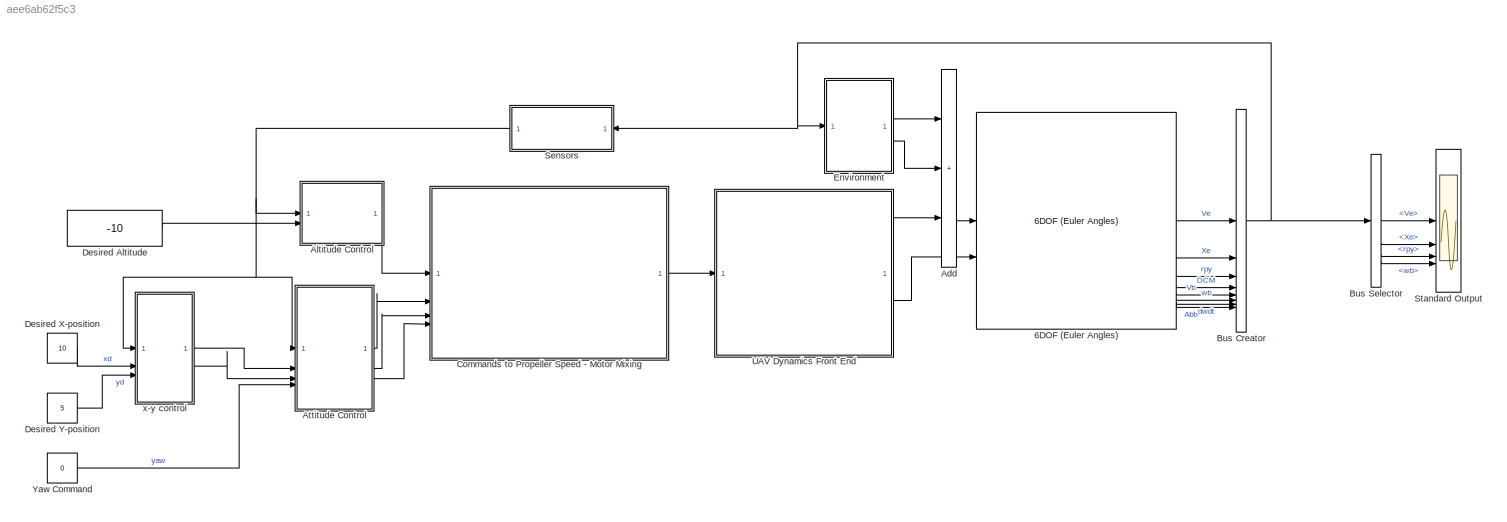
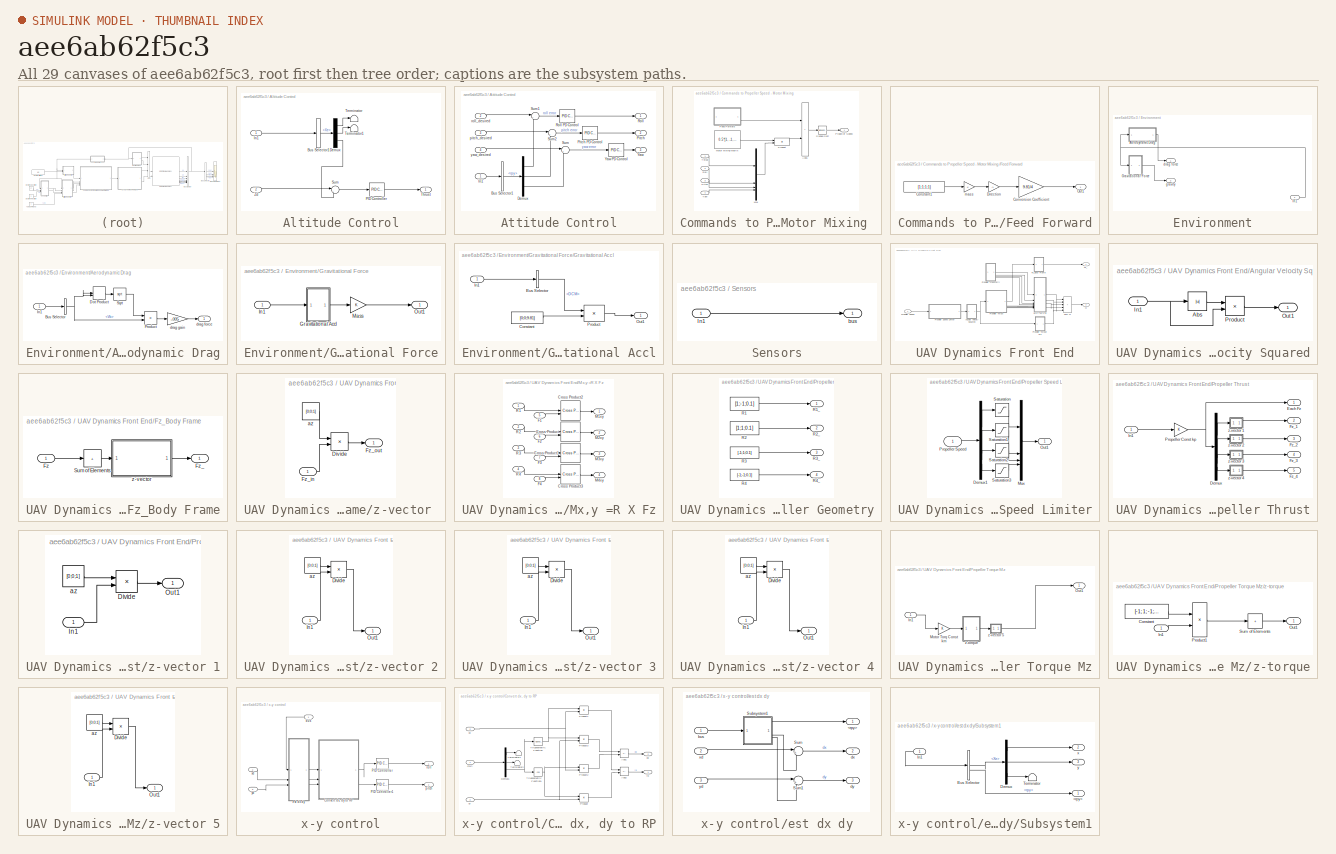
[diagram: thumbnail index - all 29 canvases of the model, root first then tree order]
MODEL slx_aee6ab62f5c3
KIND model
CONFIG AbsTol = auto
CONFIG EnableMultiTasking = off
CONFIG FixedStep = auto
CONFIG MaxStep = auto
CONFIG MinStep = auto
CONFIG RelTol = 1e-3
CONFIG SampleTimeConstraint = Unconstrained
CONFIG SolverName = VariableStepAuto
CONFIG StartTime = 0.0
CONFIG StopTime = 20
BLOCK [Reference] 6DOF (Euler Angles)  REF=aerolib6dof2/6DOF (Euler Angles)
  SourceBlock = aerolib6dof2/6DOF (Euler Angles)
  SourceType = 6DOF EoM (Body Axis)
BLOCK [Sum] Add
  IconShape = rectangular
  Inputs = +++
BLOCK [SubSystem] Altitude Control
BLOCK [BusSelector] Altitude Control/Bus Selector1
  OutputSignals = Xe
BLOCK [Demux] Altitude Control/Demux
  Outputs = 3
BLOCK [Inport] Altitude Control/In1
BLOCK [Reference] Altitude Control/PID Controller  REF=slpidlib/PID Controller
  SourceBlock = slpidlib/PID Controller
  SourceType = PID 1dof
BLOCK [Sum] Altitude Control/Sum
  Inputs = |+-
BLOCK [Terminator] Altitude Control/Terminator
BLOCK [Terminator] Altitude Control/Terminator1
BLOCK [Outport] Altitude Control/Thrust
BLOCK [Inport] Altitude Control/Zd
  Port = 2
BLOCK [SubSystem] Attitude Control
BLOCK [BusSelector] Attitude Control/Bus Selector1
  OutputSignals = rpy
BLOCK [Demux] Attitude Control/Demux
  Outputs = 3
BLOCK [Inport] Attitude Control/In1
BLOCK [Outport] Attitude Control/Pitch
  Port = 2
BLOCK [Reference] Attitude Control/Pitch PD Control  REF=slpidlib/PID Controller
  SourceBlock = slpidlib/PID Controller
  SourceType = PID 1dof
BLOCK [Outport] Attitude Control/Roll
BLOCK [Reference] Attitude Control/Roll PD Control  REF=slpidlib/PID Controller
  SourceBlock = slpidlib/PID Controller
  SourceType = PID 1dof
BLOCK [Sum] Attitude Control/Sum
  Inputs = |+-
BLOCK [Sum] Attitude Control/Sum1
  Inputs = |+-
BLOCK [Sum] Attitude Control/Sum2
  Inputs = |+-
BLOCK [Outport] Attitude Control/Yaw
  Port = 3
BLOCK [Reference] Attitude Control/Yaw PD Control  REF=slpidlib/PID Controller
  SourceBlock = slpidlib/PID Controller
  SourceType = PID 1dof
BLOCK [Inport] Attitude Control/pitch_desired
  Port = 3
BLOCK [Inport] Attitude Control/roll_desired
  Port = 2
BLOCK [Inport] Attitude Control/yaw_desired
  Port = 4
BLOCK [BusCreator] Bus Creator
  DisplayOption = bar
  InheritFromInputs = on
  Inputs = 8
BLOCK [BusSelector] Bus Selector
  OutputSignals = Ve,Xe,rpy,wb
BLOCK [SubSystem] Commands to Propeller Speed - Motor Mixing 
BLOCK [Sum] Commands to Propeller Speed - Motor Mixing /Add1
  IconShape = rectangular
BLOCK [SubSystem] Commands to Propeller Speed - Motor Mixing /Feed Forward
BLOCK [Constant] Commands to Propeller Speed - Motor Mixing /Feed Forward/Constant1
  Value = [1;1;1;1]
BLOCK [Gain] Commands to Propeller Speed - Motor Mixing /Feed Forward/Conversion Coefficient
  Gain = 9.81/4
BLOCK [Gain] Commands to Propeller Speed - Motor Mixing /Feed Forward/Direction
  Gain = -1
BLOCK [Outport] Commands to Propeller Speed - Motor Mixing /Feed Forward/Out1
BLOCK [Gain] Commands to Propeller Speed - Motor Mixing /Feed Forward/mass
BLOCK [Constant] Commands to Propeller Speed - Motor Mixing /Motor Mixing Matrix
  Value = 0.5*[1, -1, -1, -1 ; 1, 1, -1, 1 ;   1, 1, 1, -1;  1, -1, 1, 1]
  VectorParams1D = off
BLOCK [Mux] Commands to Propeller Speed - Motor Mixing /Mux
  DisplayOption = bar
BLOCK [Inport] Commands to Propeller Speed - Motor Mixing /Pitch
  Port = 3
BLOCK [Product] Commands to Propeller Speed - Motor Mixing /Product
  Multiplication = Matrix(*)
BLOCK [Outport] Commands to Propeller Speed - Motor Mixing /Propeller Speed
BLOCK [Inport] Commands to Propeller Speed - Motor Mixing /Roll
  Port = 2
BLOCK [Sqrt] Commands to Propeller Speed - Motor Mixing /Signed Sqrt
  Operator = signedSqrt
BLOCK [Inport] Commands to Propeller Speed - Motor Mixing /Thrust
BLOCK [Inport] Commands to Propeller Speed - Motor Mixing /Yaw
  Port = 4
BLOCK [Constant] Desired Altitude
  Value = -10
BLOCK [Constant] Desired X-position
  Value = 10
BLOCK [Constant] Desired Y-position
  Value = 5
BLOCK [SubSystem] Environment
BLOCK [SubSystem] Environment/Aerodynamic Drag
BLOCK [BusSelector] Environment/Aerodynamic Drag/Bus Selector
  OutputSignals = Vb
BLOCK [DotProduct] Environment/Aerodynamic Drag/Dot Product
  OutDataTypeStr = Inherit: Inherit via internal rule
BLOCK [Inport] Environment/Aerodynamic Drag/In1
BLOCK [Product] Environment/Aerodynamic Drag/Product
BLOCK [Sqrt] Environment/Aerodynamic Drag/Sqrt
BLOCK [Outport] Environment/Aerodynamic Drag/drag force
BLOCK [Gain] Environment/Aerodynamic Drag/drag gain
  Gain = -.005
BLOCK [SubSystem] Environment/Gravitational Force
BLOCK [SubSystem] Environment/Gravitational Force/Gravitational Accl
BLOCK [BusSelector] Environment/Gravitational Force/Gravitational Accl/Bus Selector
  OutputSignals = DCM
BLOCK [Constant] Environment/Gravitational Force/Gravitational Accl/Constant
  Value = [0;0;9.81]
BLOCK [Inport] Environment/Gravitational Force/Gravitational Accl/In1
BLOCK [Outport] Environment/Gravitational Force/Gravitational Accl/Out1
BLOCK [Product] Environment/Gravitational Force/Gravitational Accl/Product
  Multiplication = Matrix(*)
BLOCK [Inport] Environment/Gravitational Force/In1
BLOCK [Gain] Environment/Gravitational Force/Mass
BLOCK [Outport] Environment/Gravitational Force/Out1
BLOCK [Inport] Environment/In1
BLOCK [Outport] Environment/drag force
BLOCK [Outport] Environment/gravity
  Port = 2
BLOCK [SubSystem] Sensors
BLOCK [Inport] Sensors/In1
BLOCK [Outport] Sensors/bus
BLOCK [Scope] Standard Output
  Floating = off
  NumInputPorts = 4
  ScopeSpecificationString = Simulink.scopes.TimeScopeBlockCfg('CurrentConfiguration', extmgr.ConfigurationSet(extmgr.Configuration('Core','General UI',true),extmgr.Configuration('Core','Source UI',true),extmgr.Configuration('Sources','WiredSimulink',true),extmgr.Configuration('Visuals','Time Domain',true,'SerializedDisplays',{struct('MinYLimReal','-41.55665','MaxYLimReal','7.34157','YLabelReal','','MinYLimMag','0.00000','Max...<+3731ch>
BLOCK [SubSystem] UAV Dynamics Front End
BLOCK [SubSystem] UAV Dynamics Front End/Angular Velocity Squared
BLOCK [Abs] UAV Dynamics Front End/Angular Velocity Squared/Abs
  SaturateOnIntegerOverflow = off
BLOCK [Inport] UAV Dynamics Front End/Angular Velocity Squared/In1
BLOCK [Outport] UAV Dynamics Front End/Angular Velocity Squared/Out1
BLOCK [Product] UAV Dynamics Front End/Angular Velocity Squared/Product
BLOCK [Outport] UAV Dynamics Front End/Fz_
BLOCK [SubSystem] UAV Dynamics Front End/Fz_Body Frame
BLOCK [Inport] UAV Dynamics Front End/Fz_Body Frame/Fz
BLOCK [Outport] UAV Dynamics Front End/Fz_Body Frame/Fz_
BLOCK [Sum] UAV Dynamics Front End/Fz_Body Frame/Sum of Elements
  IconShape = rectangular
  Inputs = +
BLOCK [SubSystem] UAV Dynamics Front End/Fz_Body Frame/z-vector 
BLOCK [Product] UAV Dynamics Front End/Fz_Body Frame/z-vector /Divide
  Inputs = **
BLOCK [Inport] UAV Dynamics Front End/Fz_Body Frame/z-vector /Fz_in
BLOCK [Outport] UAV Dynamics Front End/Fz_Body Frame/z-vector /Fz_out
BLOCK [Constant] UAV Dynamics Front End/Fz_Body Frame/z-vector /az
  Value = [0;0;1]
BLOCK [Outport] UAV Dynamics Front End/M
  Port = 2
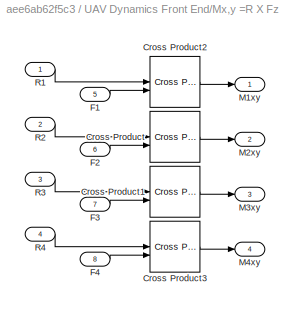
BLOCK [SubSystem] UAV Dynamics Front End/Mx,y =R X Fz
BLOCK [Reference] UAV Dynamics Front End/Mx,y =R X Fz/Cross Product  REF=matrix_library/Cross Product
  SourceBlock = matrix_library/Cross Product
  SourceType = CrossProduct
BLOCK [Reference] UAV Dynamics Front End/Mx,y =R X Fz/Cross Product1  REF=matrix_library/Cross Product
  SourceBlock = matrix_library/Cross Product
  SourceType = CrossProduct
BLOCK [Reference] UAV Dynamics Front End/Mx,y =R X Fz/Cross Product2  REF=matrix_library/Cross Product
  SourceBlock = matrix_library/Cross Product
  SourceType = CrossProduct
BLOCK [Reference] UAV Dynamics Front End/Mx,y =R X Fz/Cross Product3  REF=matrix_library/Cross Product
  SourceBlock = matrix_library/Cross Product
  SourceType = CrossProduct
BLOCK [Inport] UAV Dynamics Front End/Mx,y =R X Fz/F1
  Port = 5
BLOCK [Inport] UAV Dynamics Front End/Mx,y =R X Fz/F2
  Port = 6
BLOCK [Inport] UAV Dynamics Front End/Mx,y =R X Fz/F3
  Port = 7
BLOCK [Inport] UAV Dynamics Front End/Mx,y =R X Fz/F4
  Port = 8
BLOCK [Outport] UAV Dynamics Front End/Mx,y =R X Fz/M1xy
BLOCK [Outport] UAV Dynamics Front End/Mx,y =R X Fz/M2xy
  Port = 2
BLOCK [Outport] UAV Dynamics Front End/Mx,y =R X Fz/M3xy
  Port = 3
BLOCK [Outport] UAV Dynamics Front End/Mx,y =R X Fz/M4xy
  Port = 4
BLOCK [Inport] UAV Dynamics Front End/Mx,y =R X Fz/R1
BLOCK [Inport] UAV Dynamics Front End/Mx,y =R X Fz/R2
  Port = 2
BLOCK [Inport] UAV Dynamics Front End/Mx,y =R X Fz/R3
  Port = 3
BLOCK [Inport] UAV Dynamics Front End/Mx,y =R X Fz/R4
  Port = 4
BLOCK [SubSystem] UAV Dynamics Front End/Propeller Geometry
BLOCK [Constant] UAV Dynamics Front End/Propeller Geometry/R1
  Value = [1;-1;0.1]
BLOCK [Outport] UAV Dynamics Front End/Propeller Geometry/R1_
BLOCK [Constant] UAV Dynamics Front End/Propeller Geometry/R2
  Value = [1;1;0.1]
BLOCK [Outport] UAV Dynamics Front End/Propeller Geometry/R2_
  Port = 2
BLOCK [Constant] UAV Dynamics Front End/Propeller Geometry/R3
  Value = [-1;1;0.1]
BLOCK [Outport] UAV Dynamics Front End/Propeller Geometry/R3_
  Port = 3
BLOCK [Constant] UAV Dynamics Front End/Propeller Geometry/R4
  Value = [-1;-1;0.1]
BLOCK [Outport] UAV Dynamics Front End/Propeller Geometry/R4_
  Port = 4
BLOCK [Inport] UAV Dynamics Front End/Propeller Speed
BLOCK [SubSystem] UAV Dynamics Front End/Propeller Speed Limiter
BLOCK [Demux] UAV Dynamics Front End/Propeller Speed Limiter/Demux1
BLOCK [Mux] UAV Dynamics Front End/Propeller Speed Limiter/Mux
  DisplayOption = bar
BLOCK [Outport] UAV Dynamics Front End/Propeller Speed Limiter/Out1
BLOCK [Inport] UAV Dynamics Front End/Propeller Speed Limiter/Propeller Speed
BLOCK [Saturate] UAV Dynamics Front End/Propeller Speed Limiter/Saturation
  LowerLimit = -300
  UpperLimit = 300
BLOCK [Saturate] UAV Dynamics Front End/Propeller Speed Limiter/Saturation1
  LowerLimit = -300
  UpperLimit = 300
BLOCK [Saturate] UAV Dynamics Front End/Propeller Speed Limiter/Saturation2
  LowerLimit = -300
  UpperLimit = 300
BLOCK [Saturate] UAV Dynamics Front End/Propeller Speed Limiter/Saturation3
  LowerLimit = -300
  UpperLimit = 300
BLOCK [SubSystem] UAV Dynamics Front End/Propeller Thrust
BLOCK [Demux] UAV Dynamics Front End/Propeller Thrust/Demux
BLOCK [Outport] UAV Dynamics Front End/Propeller Thrust/Each Fz
BLOCK [Outport] UAV Dynamics Front End/Propeller Thrust/Fz_1
  Port = 2
BLOCK [Outport] UAV Dynamics Front End/Propeller Thrust/Fz_2
  Port = 3
BLOCK [Outport] UAV Dynamics Front End/Propeller Thrust/Fz_3
  Port = 4
BLOCK [Outport] UAV Dynamics Front End/Propeller Thrust/Fz_4
  Port = 5
BLOCK [Inport] UAV Dynamics Front End/Propeller Thrust/In1
BLOCK [Gain] UAV Dynamics Front End/Propeller Thrust/Propeller Const kp
BLOCK [SubSystem] UAV Dynamics Front End/Propeller Thrust/z-vector 1
BLOCK [Product] UAV Dynamics Front End/Propeller Thrust/z-vector 1/Divide
  Inputs = **
BLOCK [Inport] UAV Dynamics Front End/Propeller Thrust/z-vector 1/In1
BLOCK [Outport] UAV Dynamics Front End/Propeller Thrust/z-vector 1/Out1
BLOCK [Constant] UAV Dynamics Front End/Propeller Thrust/z-vector 1/az
  Value = [0;0;1]
BLOCK [SubSystem] UAV Dynamics Front End/Propeller Thrust/z-vector 2
BLOCK [Product] UAV Dynamics Front End/Propeller Thrust/z-vector 2/Divide
  Inputs = **
BLOCK [Inport] UAV Dynamics Front End/Propeller Thrust/z-vector 2/In1
BLOCK [Outport] UAV Dynamics Front End/Propeller Thrust/z-vector 2/Out1
BLOCK [Constant] UAV Dynamics Front End/Propeller Thrust/z-vector 2/az
  Value = [0;0;1]
BLOCK [SubSystem] UAV Dynamics Front End/Propeller Thrust/z-vector 3
BLOCK [Product] UAV Dynamics Front End/Propeller Thrust/z-vector 3/Divide
  Inputs = **
BLOCK [Inport] UAV Dynamics Front End/Propeller Thrust/z-vector 3/In1
BLOCK [Outport] UAV Dynamics Front End/Propeller Thrust/z-vector 3/Out1
BLOCK [Constant] UAV Dynamics Front End/Propeller Thrust/z-vector 3/az
  Value = [0;0;1]
BLOCK [SubSystem] UAV Dynamics Front End/Propeller Thrust/z-vector 4
BLOCK [Product] UAV Dynamics Front End/Propeller Thrust/z-vector 4/Divide
  Inputs = **
BLOCK [Inport] UAV Dynamics Front End/Propeller Thrust/z-vector 4/In1
BLOCK [Outport] UAV Dynamics Front End/Propeller Thrust/z-vector 4/Out1
BLOCK [Constant] UAV Dynamics Front End/Propeller Thrust/z-vector 4/az
  Value = [0;0;1]
BLOCK [SubSystem] UAV Dynamics Front End/Propeller Torque Mz
BLOCK [Inport] UAV Dynamics Front End/Propeller Torque Mz/In1
BLOCK [Gain] UAV Dynamics Front End/Propeller Torque Mz/Motor Torq Const km
BLOCK [Outport] UAV Dynamics Front End/Propeller Torque Mz/Out1
BLOCK [SubSystem] UAV Dynamics Front End/Propeller Torque Mz/z-torque
BLOCK [Constant] UAV Dynamics Front End/Propeller Torque Mz/z-torque/Constant
  Value = [-1; 1; -1; 1]
BLOCK [Inport] UAV Dynamics Front End/Propeller Torque Mz/z-torque/In1
BLOCK [Outport] UAV Dynamics Front End/Propeller Torque Mz/z-torque/Out1
BLOCK [Product] UAV Dynamics Front End/Propeller Torque Mz/z-torque/Product1
BLOCK [Sum] UAV Dynamics Front End/Propeller Torque Mz/z-torque/Sum of Elements
  IconShape = rectangular
  Inputs = +
BLOCK [SubSystem] UAV Dynamics Front End/Propeller Torque Mz/z-vector 5
BLOCK [Product] UAV Dynamics Front End/Propeller Torque Mz/z-vector 5/Divide
  Inputs = **
BLOCK [Inport] UAV Dynamics Front End/Propeller Torque Mz/z-vector 5/In1
BLOCK [Outport] UAV Dynamics Front End/Propeller Torque Mz/z-vector 5/Out1
BLOCK [Constant] UAV Dynamics Front End/Propeller Torque Mz/z-vector 5/az
  Value = [0;0;1]
BLOCK [Sum] UAV Dynamics Front End/Sum M
  IconShape = rectangular
  Inputs = +++++
BLOCK [Constant] Yaw Command
  Value = 0
BLOCK [SubSystem] x-y control
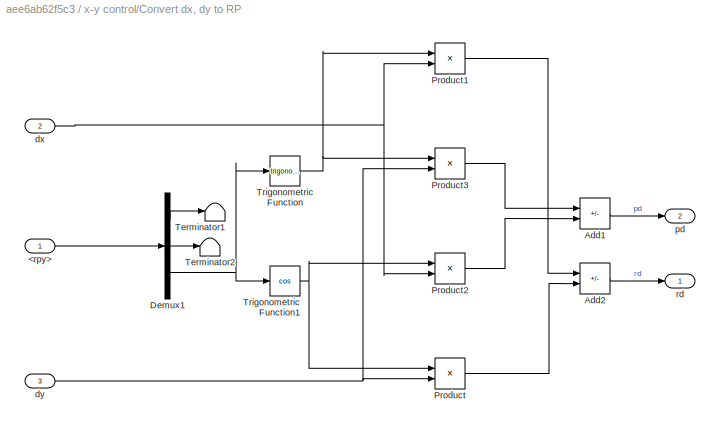
BLOCK [SubSystem] x-y control/Convert dx, dy to RP
BLOCK [Inport] x-y control/Convert dx, dy to RP/<rpy>
BLOCK [Sum] x-y control/Convert dx, dy to RP/Add1
  IconShape = rectangular
  Inputs = --
BLOCK [Sum] x-y control/Convert dx, dy to RP/Add2
  IconShape = rectangular
  Inputs = -+
BLOCK [Demux] x-y control/Convert dx, dy to RP/Demux1
  Outputs = 3
BLOCK [Product] x-y control/Convert dx, dy to RP/Product
BLOCK [Product] x-y control/Convert dx, dy to RP/Product1
BLOCK [Product] x-y control/Convert dx, dy to RP/Product2
BLOCK [Product] x-y control/Convert dx, dy to RP/Product3
BLOCK [Terminator] x-y control/Convert dx, dy to RP/Terminator1
BLOCK [Terminator] x-y control/Convert dx, dy to RP/Terminator2
BLOCK [Trigonometry] x-y control/Convert dx, dy to RP/Trigonometric Function
BLOCK [Trigonometry] x-y control/Convert dx, dy to RP/Trigonometric Function1
  Operator = cos
BLOCK [Inport] x-y control/Convert dx, dy to RP/dx
  Port = 2
BLOCK [Inport] x-y control/Convert dx, dy to RP/dy
  Port = 3
BLOCK [Outport] x-y control/Convert dx, dy to RP/pd
  Port = 2
BLOCK [Outport] x-y control/Convert dx, dy to RP/rd
BLOCK [Reference] x-y control/PID Controller  REF=slpidlib/PID Controller
  SourceBlock = slpidlib/PID Controller
  SourceType = PID 1dof
BLOCK [Reference] x-y control/PID Controller1  REF=slpidlib/PID Controller
  SourceBlock = slpidlib/PID Controller
  SourceType = PID 1dof
BLOCK [Inport] x-y control/bus
BLOCK [SubSystem] x-y control/est dx dy
BLOCK [Outport] x-y control/est dx dy/<rpy>
BLOCK [SubSystem] x-y control/est dx dy/Subsystem1
BLOCK [Outport] x-y control/est dx dy/Subsystem1/<rpy>
BLOCK [BusSelector] x-y control/est dx dy/Subsystem1/Bus Selector
  OutputSignals = Xe,rpy
BLOCK [Demux] x-y control/est dx dy/Subsystem1/Demux
  Outputs = 3
BLOCK [Inport] x-y control/est dx dy/Subsystem1/In1
BLOCK [Terminator] x-y control/est dx dy/Subsystem1/Terminator
BLOCK [Outport] x-y control/est dx dy/Subsystem1/x
  Port = 2
BLOCK [Outport] x-y control/est dx dy/Subsystem1/y
  Port = 3
BLOCK [Sum] x-y control/est dx dy/Sum
  Inputs = |+-
BLOCK [Sum] x-y control/est dx dy/Sum1
  Inputs = |+-
BLOCK [Inport] x-y control/est dx dy/bus
BLOCK [Outport] x-y control/est dx dy/dx
  Port = 2
BLOCK [Outport] x-y control/est dx dy/dy
  Port = 3
BLOCK [Inport] x-y control/est dx dy/xd
  Port = 2
BLOCK [Inport] x-y control/est dx dy/yd
  Port = 3
BLOCK [Outport] x-y control/pitch
  Port = 2
BLOCK [Outport] x-y control/roll
BLOCK [Inport] x-y control/xd
  Port = 2
BLOCK [Inport] x-y control/yd
  Port = 3
LINE 6DOF (Euler Angles):1 -> Bus Creator:1
LINE 6DOF (Euler Angles):2 -> Bus Creator:2
LINE 6DOF (Euler Angles):3 -> Bus Creator:3
LINE 6DOF (Euler Angles):4 -> Bus Creator:4
LINE 6DOF (Euler Angles):5 -> Bus Creator:5
LINE 6DOF (Euler Angles):6 -> Bus Creator:6
LINE 6DOF (Euler Angles):7 -> Bus Creator:7
LINE 6DOF (Euler Angles):8 -> Bus Creator:8
LINE Add:1 -> 6DOF (Euler Angles):1
LINE Altitude Control/Bus Selector1:1 -> Altitude Control/Demux:1
LINE Altitude Control/Demux:1 -> Altitude Control/Terminator:1
LINE Altitude Control/Demux:2 -> Altitude Control/Terminator1:1
LINE Altitude Control/Demux:3 -> Altitude Control/Sum:2
LINE Altitude Control/In1:1 -> Altitude Control/Bus Selector1:1
LINE Altitude Control/PID Controller:1 -> Altitude Control/Thrust:1
LINE Altitude Control/Sum:1 -> Altitude Control/PID Controller:1
LINE Altitude Control/Zd:1 -> Altitude Control/Sum:1
LINE Altitude Control:1 -> Commands to Propeller Speed - Motor Mixing :1
LINE Attitude Control/Bus Selector1:1 -> Attitude Control/Demux:1
LINE Attitude Control/Demux:1 -> Attitude Control/Sum1:2
LINE Attitude Control/Demux:2 -> Attitude Control/Sum2:2
LINE Attitude Control/Demux:3 -> Attitude Control/Sum:2
LINE Attitude Control/In1:1 -> Attitude Control/Bus Selector1:1
LINE Attitude Control/Pitch PD Control:1 -> Attitude Control/Pitch:1
LINE Attitude Control/Roll PD Control:1 -> Attitude Control/Roll:1
LINE Attitude Control/Sum1:1 -> Attitude Control/Roll PD Control:1
LINE Attitude Control/Sum2:1 -> Attitude Control/Pitch PD Control:1
LINE Attitude Control/Sum:1 -> Attitude Control/Yaw PD Control:1
LINE Attitude Control/Yaw PD Control:1 -> Attitude Control/Yaw:1
LINE Attitude Control/pitch_desired:1 -> Attitude Control/Sum2:1
LINE Attitude Control/roll_desired:1 -> Attitude Control/Sum1:1
LINE Attitude Control/yaw_desired:1 -> Attitude Control/Sum:1
LINE Attitude Control:1 -> Commands to Propeller Speed - Motor Mixing :2
LINE Attitude Control:2 -> Commands to Propeller Speed - Motor Mixing :3
LINE Attitude Control:3 -> Commands to Propeller Speed - Motor Mixing :4
NET Bus Creator:1 -> Bus Selector:1, Environment:1, Sensors:1
LINE Bus Selector:1 -> Standard Output:1
LINE Bus Selector:2 -> Standard Output:2
LINE Bus Selector:3 -> Standard Output:3
LINE Bus Selector:4 -> Standard Output:4
LINE Commands to Propeller Speed - Motor Mixing /Add1:1 -> Commands to Propeller Speed - Motor Mixing /Signed Sqrt:1
LINE Commands to Propeller Speed - Motor Mixing /Feed Forward/Constant1:1 -> Commands to Propeller Speed - Motor Mixing /Feed Forward/mass:1
LINE Commands to Propeller Speed - Motor Mixing /Feed Forward/Conversion Coefficient:1 -> Commands to Propeller Speed - Motor Mixing /Feed Forward/Out1:1
LINE Commands to Propeller Speed - Motor Mixing /Feed Forward/Direction:1 -> Commands to Propeller Speed - Motor Mixing /Feed Forward/Conversion Coefficient:1
LINE Commands to Propeller Speed - Motor Mixing /Feed Forward/mass:1 -> Commands to Propeller Speed - Motor Mixing /Feed Forward/Direction:1
LINE Commands to Propeller Speed - Motor Mixing /Feed Forward:1 -> Commands to Propeller Speed - Motor Mixing /Add1:1
LINE Commands to Propeller Speed - Motor Mixing /Motor Mixing Matrix:1 -> Commands to Propeller Speed - Motor Mixing /Product:1
LINE Commands to Propeller Speed - Motor Mixing /Mux:1 -> Commands to Propeller Speed - Motor Mixing /Product:2
LINE Commands to Propeller Speed - Motor Mixing /Pitch:1 -> Commands to Propeller Speed - Motor Mixing /Mux:3
LINE Commands to Propeller Speed - Motor Mixing /Product:1 -> Commands to Propeller Speed - Motor Mixing /Add1:2
LINE Commands to Propeller Speed - Motor Mixing /Roll:1 -> Commands to Propeller Speed - Motor Mixing /Mux:2
LINE Commands to Propeller Speed - Motor Mixing /Signed Sqrt:1 -> Commands to Propeller Speed - Motor Mixing /Propeller Speed:1
LINE Commands to Propeller Speed - Motor Mixing /Thrust:1 -> Commands to Propeller Speed - Motor Mixing /Mux:1
LINE Commands to Propeller Speed - Motor Mixing /Yaw:1 -> Commands to Propeller Speed - Motor Mixing /Mux:4
LINE Commands to Propeller Speed - Motor Mixing :1 -> UAV Dynamics Front End:1
LINE Desired Altitude:1 -> Altitude Control:2
LINE Desired X-position:1 -> x-y control:2
LINE Desired Y-position:1 -> x-y control:3
NET Environment/Aerodynamic Drag/Bus Selector:1 -> Environment/Aerodynamic Drag/Dot Product:1, Environment/Aerodynamic Drag/Dot Product:2, Environment/Aerodynamic Drag/Product:2
LINE Environment/Aerodynamic Drag/Dot Product:1 -> Environment/Aerodynamic Drag/Sqrt:1
LINE Environment/Aerodynamic Drag/In1:1 -> Environment/Aerodynamic Drag/Bus Selector:1
LINE Environment/Aerodynamic Drag/Product:1 -> Environment/Aerodynamic Drag/drag gain:1
LINE Environment/Aerodynamic Drag/Sqrt:1 -> Environment/Aerodynamic Drag/Product:1
LINE Environment/Aerodynamic Drag/drag gain:1 -> Environment/Aerodynamic Drag/drag force:1
LINE Environment/Aerodynamic Drag:1 -> Environment/drag force:1
LINE Environment/Gravitational Force/Gravitational Accl/Bus Selector:1 -> Environment/Gravitational Force/Gravitational Accl/Product:1
LINE Environment/Gravitational Force/Gravitational Accl/Constant:1 -> Environment/Gravitational Force/Gravitational Accl/Product:2
LINE Environment/Gravitational Force/Gravitational Accl/In1:1 -> Environment/Gravitational Force/Gravitational Accl/Bus Selector:1
LINE Environment/Gravitational Force/Gravitational Accl/Product:1 -> Environment/Gravitational Force/Gravitational Accl/Out1:1
LINE Environment/Gravitational Force/Gravitational Accl:1 -> Environment/Gravitational Force/Mass:1
LINE Environment/Gravitational Force/In1:1 -> Environment/Gravitational Force/Gravitational Accl:1
LINE Environment/Gravitational Force/Mass:1 -> Environment/Gravitational Force/Out1:1
LINE Environment/Gravitational Force:1 -> Environment/gravity:1
NET Environment/In1:1 -> Environment/Aerodynamic Drag:1, Environment/Gravitational Force:1
LINE Environment:1 -> Add:1
LINE Environment:2 -> Add:2
LINE Sensors/In1:1 -> Sensors/bus:1
NET Sensors:1 -> Altitude Control:1, Attitude Control:1, x-y control:1
LINE UAV Dynamics Front End/Angular Velocity Squared/Abs:1 -> UAV Dynamics Front End/Angular Velocity Squared/Product:1
NET UAV Dynamics Front End/Angular Velocity Squared/In1:1 -> UAV Dynamics Front End/Angular Velocity Squared/Abs:1, UAV Dynamics Front End/Angular Velocity Squared/Product:2
LINE UAV Dynamics Front End/Angular Velocity Squared/Product:1 -> UAV Dynamics Front End/Angular Velocity Squared/Out1:1
NET UAV Dynamics Front End/Angular Velocity Squared:1 -> UAV Dynamics Front End/Propeller Thrust:1, UAV Dynamics Front End/Propeller Torque Mz:1
LINE UAV Dynamics Front End/Fz_Body Frame/Fz:1 -> UAV Dynamics Front End/Fz_Body Frame/Sum of Elements:1
LINE UAV Dynamics Front End/Fz_Body Frame/Sum of Elements:1 -> UAV Dynamics Front End/Fz_Body Frame/z-vector :1
LINE UAV Dynamics Front End/Fz_Body Frame/z-vector /Divide:1 -> UAV Dynamics Front End/Fz_Body Frame/z-vector /Fz_out:1
LINE UAV Dynamics Front End/Fz_Body Frame/z-vector /Fz_in:1 -> UAV Dynamics Front End/Fz_Body Frame/z-vector /Divide:2
LINE UAV Dynamics Front End/Fz_Body Frame/z-vector /az:1 -> UAV Dynamics Front End/Fz_Body Frame/z-vector /Divide:1
LINE UAV Dynamics Front End/Fz_Body Frame/z-vector :1 -> UAV Dynamics Front End/Fz_Body Frame/Fz_:1
LINE UAV Dynamics Front End/Fz_Body Frame:1 -> UAV Dynamics Front End/Fz_:1
LINE UAV Dynamics Front End/Mx,y =R X Fz/Cross Product1:1 -> UAV Dynamics Front End/Mx,y =R X Fz/M3xy:1
LINE UAV Dynamics Front End/Mx,y =R X Fz/Cross Product2:1 -> UAV Dynamics Front End/Mx,y =R X Fz/M1xy:1
LINE UAV Dynamics Front End/Mx,y =R X Fz/Cross Product3:1 -> UAV Dynamics Front End/Mx,y =R X Fz/M4xy:1
LINE UAV Dynamics Front End/Mx,y =R X Fz/Cross Product:1 -> UAV Dynamics Front End/Mx,y =R X Fz/M2xy:1
LINE UAV Dynamics Front End/Mx,y =R X Fz/F1:1 -> UAV Dynamics Front End/Mx,y =R X Fz/Cross Product2:2
LINE UAV Dynamics Front End/Mx,y =R X Fz/F2:1 -> UAV Dynamics Front End/Mx,y =R X Fz/Cross Product:2
LINE UAV Dynamics Front End/Mx,y =R X Fz/F3:1 -> UAV Dynamics Front End/Mx,y =R X Fz/Cross Product1:2
LINE UAV Dynamics Front End/Mx,y =R X Fz/F4:1 -> UAV Dynamics Front End/Mx,y =R X Fz/Cross Product3:2
LINE UAV Dynamics Front End/Mx,y =R X Fz/R1:1 -> UAV Dynamics Front End/Mx,y =R X Fz/Cross Product2:1
LINE UAV Dynamics Front End/Mx,y =R X Fz/R2:1 -> UAV Dynamics Front End/Mx,y =R X Fz/Cross Product:1
LINE UAV Dynamics Front End/Mx,y =R X Fz/R3:1 -> UAV Dynamics Front End/Mx,y =R X Fz/Cross Product1:1
LINE UAV Dynamics Front End/Mx,y =R X Fz/R4:1 -> UAV Dynamics Front End/Mx,y =R X Fz/Cross Product3:1
LINE UAV Dynamics Front End/Mx,y =R X Fz:1 -> UAV Dynamics Front End/Sum M:1
LINE UAV Dynamics Front End/Mx,y =R X Fz:2 -> UAV Dynamics Front End/Sum M:2
LINE UAV Dynamics Front End/Mx,y =R X Fz:3 -> UAV Dynamics Front End/Sum M:3
LINE UAV Dynamics Front End/Mx,y =R X Fz:4 -> UAV Dynamics Front End/Sum M:4
LINE UAV Dynamics Front End/Propeller Geometry/R1:1 -> UAV Dynamics Front End/Propeller Geometry/R1_:1
LINE UAV Dynamics Front End/Propeller Geometry/R2:1 -> UAV Dynamics Front End/Propeller Geometry/R2_:1
LINE UAV Dynamics Front End/Propeller Geometry/R3:1 -> UAV Dynamics Front End/Propeller Geometry/R3_:1
LINE UAV Dynamics Front End/Propeller Geometry/R4:1 -> UAV Dynamics Front End/Propeller Geometry/R4_:1
LINE UAV Dynamics Front End/Propeller Geometry:1 -> UAV Dynamics Front End/Mx,y =R X Fz:1
LINE UAV Dynamics Front End/Propeller Geometry:2 -> UAV Dynamics Front End/Mx,y =R X Fz:2
LINE UAV Dynamics Front End/Propeller Geometry:3 -> UAV Dynamics Front End/Mx,y =R X Fz:3
LINE UAV Dynamics Front End/Propeller Geometry:4 -> UAV Dynamics Front End/Mx,y =R X Fz:4
LINE UAV Dynamics Front End/Propeller Speed Limiter/Demux1:1 -> UAV Dynamics Front End/Propeller Speed Limiter/Saturation:1
LINE UAV Dynamics Front End/Propeller Speed Limiter/Demux1:2 -> UAV Dynamics Front End/Propeller Speed Limiter/Saturation1:1
LINE UAV Dynamics Front End/Propeller Speed Limiter/Demux1:3 -> UAV Dynamics Front End/Propeller Speed Limiter/Saturation2:1
LINE UAV Dynamics Front End/Propeller Speed Limiter/Demux1:4 -> UAV Dynamics Front End/Propeller Speed Limiter/Saturation3:1
LINE UAV Dynamics Front End/Propeller Speed Limiter/Mux:1 -> UAV Dynamics Front End/Propeller Speed Limiter/Out1:1
LINE UAV Dynamics Front End/Propeller Speed Limiter/Propeller Speed:1 -> UAV Dynamics Front End/Propeller Speed Limiter/Demux1:1
LINE UAV Dynamics Front End/Propeller Speed Limiter/Saturation1:1 -> UAV Dynamics Front End/Propeller Speed Limiter/Mux:2
LINE UAV Dynamics Front End/Propeller Speed Limiter/Saturation2:1 -> UAV Dynamics Front End/Propeller Speed Limiter/Mux:3
LINE UAV Dynamics Front End/Propeller Speed Limiter/Saturation3:1 -> UAV Dynamics Front End/Propeller Speed Limiter/Mux:4
LINE UAV Dynamics Front End/Propeller Speed Limiter/Saturation:1 -> UAV Dynamics Front End/Propeller Speed Limiter/Mux:1
LINE UAV Dynamics Front End/Propeller Speed Limiter:1 -> UAV Dynamics Front End/Angular Velocity Squared:1
LINE UAV Dynamics Front End/Propeller Speed:1 -> UAV Dynamics Front End/Propeller Speed Limiter:1
LINE UAV Dynamics Front End/Propeller Thrust/Demux:1 -> UAV Dynamics Front End/Propeller Thrust/z-vector 1:1
LINE UAV Dynamics Front End/Propeller Thrust/Demux:2 -> UAV Dynamics Front End/Propeller Thrust/z-vector 2:1
LINE UAV Dynamics Front End/Propeller Thrust/Demux:3 -> UAV Dynamics Front End/Propeller Thrust/z-vector 3:1
LINE UAV Dynamics Front End/Propeller Thrust/Demux:4 -> UAV Dynamics Front End/Propeller Thrust/z-vector 4:1
LINE UAV Dynamics Front End/Propeller Thrust/In1:1 -> UAV Dynamics Front End/Propeller Thrust/Propeller Const kp:1
NET UAV Dynamics Front End/Propeller Thrust/Propeller Const kp:1 -> UAV Dynamics Front End/Propeller Thrust/Demux:1, UAV Dynamics Front End/Propeller Thrust/Each Fz:1
LINE UAV Dynamics Front End/Propeller Thrust/z-vector 1/Divide:1 -> UAV Dynamics Front End/Propeller Thrust/z-vector 1/Out1:1
LINE UAV Dynamics Front End/Propeller Thrust/z-vector 1/In1:1 -> UAV Dynamics Front End/Propeller Thrust/z-vector 1/Divide:2
LINE UAV Dynamics Front End/Propeller Thrust/z-vector 1/az:1 -> UAV Dynamics Front End/Propeller Thrust/z-vector 1/Divide:1
LINE UAV Dynamics Front End/Propeller Thrust/z-vector 1:1 -> UAV Dynamics Front End/Propeller Thrust/Fz_1:1
LINE UAV Dynamics Front End/Propeller Thrust/z-vector 2/Divide:1 -> UAV Dynamics Front End/Propeller Thrust/z-vector 2/Out1:1
LINE UAV Dynamics Front End/Propeller Thrust/z-vector 2/In1:1 -> UAV Dynamics Front End/Propeller Thrust/z-vector 2/Divide:2
LINE UAV Dynamics Front End/Propeller Thrust/z-vector 2/az:1 -> UAV Dynamics Front End/Propeller Thrust/z-vector 2/Divide:1
LINE UAV Dynamics Front End/Propeller Thrust/z-vector 2:1 -> UAV Dynamics Front End/Propeller Thrust/Fz_2:1
LINE UAV Dynamics Front End/Propeller Thrust/z-vector 3/Divide:1 -> UAV Dynamics Front End/Propeller Thrust/z-vector 3/Out1:1
LINE UAV Dynamics Front End/Propeller Thrust/z-vector 3/In1:1 -> UAV Dynamics Front End/Propeller Thrust/z-vector 3/Divide:2
LINE UAV Dynamics Front End/Propeller Thrust/z-vector 3/az:1 -> UAV Dynamics Front End/Propeller Thrust/z-vector 3/Divide:1
LINE UAV Dynamics Front End/Propeller Thrust/z-vector 3:1 -> UAV Dynamics Front End/Propeller Thrust/Fz_3:1
LINE UAV Dynamics Front End/Propeller Thrust/z-vector 4/Divide:1 -> UAV Dynamics Front End/Propeller Thrust/z-vector 4/Out1:1
LINE UAV Dynamics Front End/Propeller Thrust/z-vector 4/In1:1 -> UAV Dynamics Front End/Propeller Thrust/z-vector 4/Divide:2
LINE UAV Dynamics Front End/Propeller Thrust/z-vector 4/az:1 -> UAV Dynamics Front End/Propeller Thrust/z-vector 4/Divide:1
LINE UAV Dynamics Front End/Propeller Thrust/z-vector 4:1 -> UAV Dynamics Front End/Propeller Thrust/Fz_4:1
LINE UAV Dynamics Front End/Propeller Thrust:1 -> UAV Dynamics Front End/Fz_Body Frame:1
LINE UAV Dynamics Front End/Propeller Thrust:2 -> UAV Dynamics Front End/Mx,y =R X Fz:5
LINE UAV Dynamics Front End/Propeller Thrust:3 -> UAV Dynamics Front End/Mx,y =R X Fz:6
LINE UAV Dynamics Front End/Propeller Thrust:4 -> UAV Dynamics Front End/Mx,y =R X Fz:7
LINE UAV Dynamics Front End/Propeller Thrust:5 -> UAV Dynamics Front End/Mx,y =R X Fz:8
LINE UAV Dynamics Front End/Propeller Torque Mz/In1:1 -> UAV Dynamics Front End/Propeller Torque Mz/Motor Torq Const km:1
LINE UAV Dynamics Front End/Propeller Torque Mz/Motor Torq Const km:1 -> UAV Dynamics Front End/Propeller Torque Mz/z-torque:1
LINE UAV Dynamics Front End/Propeller Torque Mz/z-torque/Constant:1 -> UAV Dynamics Front End/Propeller Torque Mz/z-torque/Product1:1
LINE UAV Dynamics Front End/Propeller Torque Mz/z-torque/In1:1 -> UAV Dynamics Front End/Propeller Torque Mz/z-torque/Product1:2
LINE UAV Dynamics Front End/Propeller Torque Mz/z-torque/Product1:1 -> UAV Dynamics Front End/Propeller Torque Mz/z-torque/Sum of Elements:1
LINE UAV Dynamics Front End/Propeller Torque Mz/z-torque/Sum of Elements:1 -> UAV Dynamics Front End/Propeller Torque Mz/z-torque/Out1:1
LINE UAV Dynamics Front End/Propeller Torque Mz/z-torque:1 -> UAV Dynamics Front End/Propeller Torque Mz/z-vector 5:1
LINE UAV Dynamics Front End/Propeller Torque Mz/z-vector 5/Divide:1 -> UAV Dynamics Front End/Propeller Torque Mz/z-vector 5/Out1:1
LINE UAV Dynamics Front End/Propeller Torque Mz/z-vector 5/In1:1 -> UAV Dynamics Front End/Propeller Torque Mz/z-vector 5/Divide:2
LINE UAV Dynamics Front End/Propeller Torque Mz/z-vector 5/az:1 -> UAV Dynamics Front End/Propeller Torque Mz/z-vector 5/Divide:1
LINE UAV Dynamics Front End/Propeller Torque Mz/z-vector 5:1 -> UAV Dynamics Front End/Propeller Torque Mz/Out1:1
LINE UAV Dynamics Front End/Propeller Torque Mz:1 -> UAV Dynamics Front End/Sum M:5
LINE UAV Dynamics Front End/Sum M:1 -> UAV Dynamics Front End/M:1
LINE UAV Dynamics Front End:1 -> Add:3
LINE UAV Dynamics Front End:2 -> 6DOF (Euler Angles):2
LINE Yaw Command:1 -> Attitude Control:4
LINE x-y control/Convert dx, dy to RP/<rpy>:1 -> x-y control/Convert dx, dy to RP/Demux1:1
LINE x-y control/Convert dx, dy to RP/Add1:1 -> x-y control/Convert dx, dy to RP/pd:1
LINE x-y control/Convert dx, dy to RP/Add2:1 -> x-y control/Convert dx, dy to RP/rd:1
LINE x-y control/Convert dx, dy to RP/Demux1:1 -> x-y control/Convert dx, dy to RP/Terminator1:1
LINE x-y control/Convert dx, dy to RP/Demux1:2 -> x-y control/Convert dx, dy to RP/Terminator2:1
NET x-y control/Convert dx, dy to RP/Demux1:3 -> x-y control/Convert dx, dy to RP/Trigonometric Function1:1, x-y control/Convert dx, dy to RP/Trigonometric Function:1
LINE x-y control/Convert dx, dy to RP/Product1:1 -> x-y control/Convert dx, dy to RP/Add2:1
LINE x-y control/Convert dx, dy to RP/Product2:1 -> x-y control/Convert dx, dy to RP/Add1:2
LINE x-y control/Convert dx, dy to RP/Product3:1 -> x-y control/Convert dx, dy to RP/Add1:1
LINE x-y control/Convert dx, dy to RP/Product:1 -> x-y control/Convert dx, dy to RP/Add2:2
NET x-y control/Convert dx, dy to RP/Trigonometric Function1:1 -> x-y control/Convert dx, dy to RP/Product2:1, x-y control/Convert dx, dy to RP/Product:1
NET x-y control/Convert dx, dy to RP/Trigonometric Function:1 -> x-y control/Convert dx, dy to RP/Product1:1, x-y control/Convert dx, dy to RP/Product3:1
NET x-y control/Convert dx, dy to RP/dx:1 -> x-y control/Convert dx, dy to RP/Product1:2, x-y control/Convert dx, dy to RP/Product2:2
NET x-y control/Convert dx, dy to RP/dy:1 -> x-y control/Convert dx, dy to RP/Product3:2, x-y control/Convert dx, dy to RP/Product:2
LINE x-y control/Convert dx, dy to RP:1 -> x-y control/PID Controller:1
LINE x-y control/Convert dx, dy to RP:2 -> x-y control/PID Controller1:1
LINE x-y control/PID Controller1:1 -> x-y control/pitch:1
LINE x-y control/PID Controller:1 -> x-y control/roll:1
LINE x-y control/bus:1 -> x-y control/est dx dy:1
LINE x-y control/est dx dy/Subsystem1/Bus Selector:1 -> x-y control/est dx dy/Subsystem1/Demux:1
LINE x-y control/est dx dy/Subsystem1/Bus Selector:2 -> x-y control/est dx dy/Subsystem1/<rpy>:1
LINE x-y control/est dx dy/Subsystem1/Demux:1 -> x-y control/est dx dy/Subsystem1/x:1
LINE x-y control/est dx dy/Subsystem1/Demux:2 -> x-y control/est dx dy/Subsystem1/y:1
LINE x-y control/est dx dy/Subsystem1/Demux:3 -> x-y control/est dx dy/Subsystem1/Terminator:1
LINE x-y control/est dx dy/Subsystem1/In1:1 -> x-y control/est dx dy/Subsystem1/Bus Selector:1
LINE x-y control/est dx dy/Subsystem1:1 -> x-y control/est dx dy/<rpy>:1
LINE x-y control/est dx dy/Subsystem1:2 -> x-y control/est dx dy/Sum:2
LINE x-y control/est dx dy/Subsystem1:3 -> x-y control/est dx dy/Sum1:2
LINE x-y control/est dx dy/Sum1:1 -> x-y control/est dx dy/dy:1
LINE x-y control/est dx dy/Sum:1 -> x-y control/est dx dy/dx:1
LINE x-y control/est dx dy/bus:1 -> x-y control/est dx dy/Subsystem1:1
LINE x-y control/est dx dy/xd:1 -> x-y control/est dx dy/Sum:1
LINE x-y control/est dx dy/yd:1 -> x-y control/est dx dy/Sum1:1
LINE x-y control/est dx dy:1 -> x-y control/Convert dx, dy to RP:1
LINE x-y control/est dx dy:2 -> x-y control/Convert dx, dy to RP:2
LINE x-y control/est dx dy:3 -> x-y control/Convert dx, dy to RP:3
LINE x-y control/xd:1 -> x-y control/est dx dy:2
LINE x-y control/yd:1 -> x-y control/est dx dy:3
LINE x-y control:1 -> Attitude Control:2
LINE x-y control:2 -> Attitude Control:3
note: NET lines group one-source signal fan-out (src -> all destinations, sorted); 1:1 wires keep LINE
